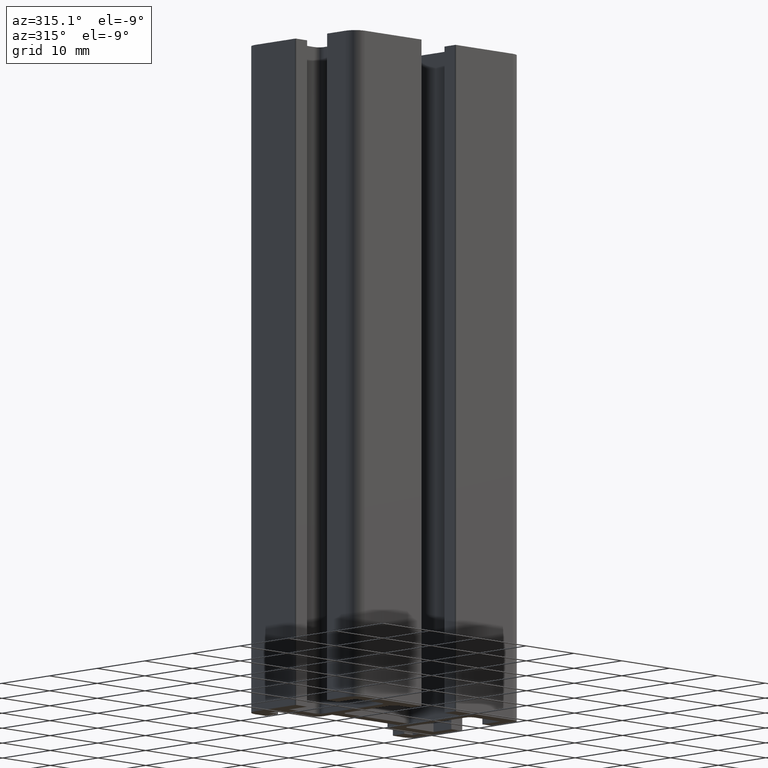
[diagram: clean part render]
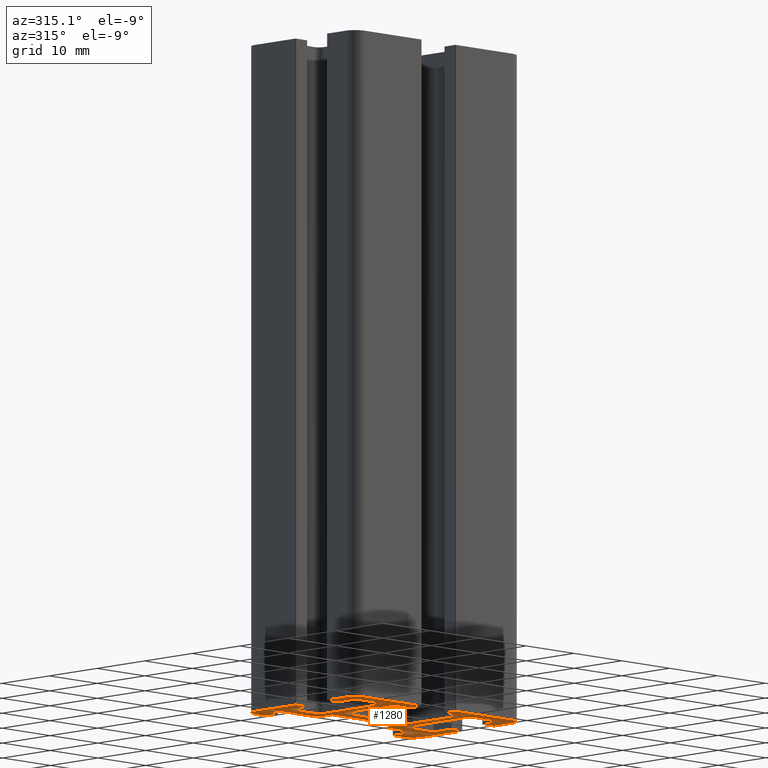
[diagram: same view with one face highlighted and labeled with its STEP entity id]
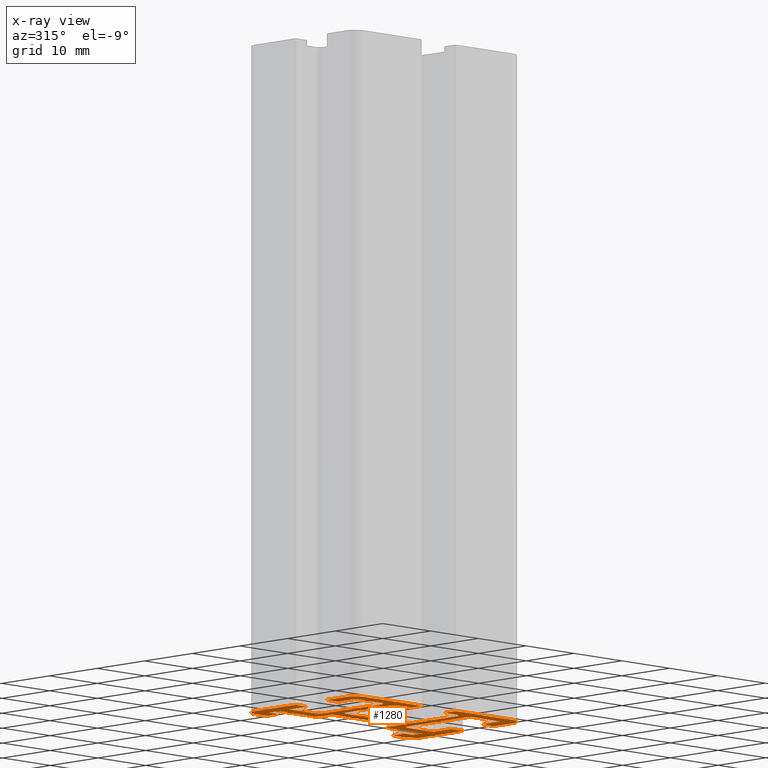
[diagram: x-ray of the same camera — body ghosted, the highlighted face saturated]
A machine part, auxiliary view. The second image highlights one B-rep face of the part: STEP entity #1280.
The next image is the same camera in x-ray: the body ghosted, the highlighted face saturated — about 0% of this face is hidden behind the body in this view.
In plain terms, the highlighted planar face has unit normal (0, 0, 1).
Its self-contained STEP definition (entity closure, byte-faithful):
#56=PLANE('',#1390);
#120=FACE_OUTER_BOUND('',#184,.T.);
#184=EDGE_LOOP('',(#1133,#1134,#1135,#1136,#1137,#1138,#1139,#1140,#1141,
#1142,#1143,#1144,#1145,#1146,#1147,#1148,#1149,#1150,#1151,#1152,#1153,
#1154,#1155,#1156,#1157,#1158,#1159,#1160,#1161,#1162,#1163,#1164,#1165,
#1166,#1167,#1168,#1169,#1170,#1171,#1172,#1173,#1174,#1175,#1176,#1177,
#1178,#1179,#1180,#1181,#1182,#1183,#1184,#1185,#1186,#1187,#1188,#1189,
#1190,#1191,#1192,#1193,#1194));
#187=LINE('',#1763,#329);
#191=LINE('',#1775,#333);
#194=LINE('',#1781,#336);
#198=LINE('',#1793,#340);
#202=LINE('',#1805,#344);
#206=LINE('',#1817,#348);
#209=LINE('',#1823,#351);
#212=LINE('',#1829,#354);
#216=LINE('',#1841,#358);
#220=LINE('',#1853,#362);
#223=LINE('',#1859,#365);
#226=LINE('',#1865,#368);
#230=LINE('',#1877,#372);
#234=LINE('',#1889,#376);
#238=LINE('',#1901,#380);
#241=LINE('',#1907,#383);
#244=LINE('',#1913,#386);
#247=LINE('',#1919,#389);
#251=LINE('',#1931,#393);
#254=LINE('',#1937,#396);
#257=LINE('',#1943,#399);
#261=LINE('',#1955,#403);
#264=LINE('',#1961,#406);
#267=LINE('',#1967,#409);
#270=LINE('',#1973,#412);
#274=LINE('',#1985,#416);
#278=LINE('',#1997,#420);
#282=LINE('',#2009,#424);
#285=LINE('',#2015,#427);
#288=LINE('',#2021,#430);
#292=LINE('',#2033,#434);
#296=LINE('',#2045,#438);
#299=LINE('',#2051,#441);
#302=LINE('',#2057,#444);
#306=LINE('',#2069,#448);
#310=LINE('',#2081,#452);
#314=LINE('',#2093,#456);
#317=LINE('',#2099,#459);
#321=LINE('',#2111,#463);
#325=LINE('',#2122,#467);
#329=VECTOR('',#1403,8.99999999999999);
#333=VECTOR('',#1415,2.54999999999995);
#336=VECTOR('',#1420,2.09999999999997);
#340=VECTOR('',#1432,11.8);
#344=VECTOR('',#1444,3.79999999999999);
#348=VECTOR('',#1456,2.20000000000002);
#351=VECTOR('',#1461,3.75);
#354=VECTOR('',#1466,5.29999999999998);
#358=VECTOR('',#1478,12.0000000000001);
#362=VECTOR('',#1490,5.30000000000001);
#365=VECTOR('',#1495,3.75000000000004);
#368=VECTOR('',#1500,2.20000000000002);
#372=VECTOR('',#1512,8.30000000000002);
#376=VECTOR('',#1524,2.09999999999999);
#380=VECTOR('',#1536,2.29999999999997);
#383=VECTOR('',#1541,1.83621699300963);
#386=VECTOR('',#1546,2.10000000000001);
#389=VECTOR('',#1551,6.98533053704571);
#393=VECTOR('',#1563,2.1715475300554);
#396=VECTOR('',#1568,14.1);
#399=VECTOR('',#1573,2.1715475300554);
#403=VECTOR('',#1585,6.98533053704571);
#406=VECTOR('',#1590,2.10000000000001);
#409=VECTOR('',#1595,1.76378300699038);
#412=VECTOR('',#1600,2.29999999999997);
#416=VECTOR('',#1612,2.10000000000001);
#420=VECTOR('',#1624,8.30000000000002);
#424=VECTOR('',#1636,2.19999999999999);
#427=VECTOR('',#1641,3.75000000000004);
#430=VECTOR('',#1646,5.30000000000001);
#434=VECTOR('',#1658,12.);
#438=VECTOR('',#1670,5.29999999999998);
#441=VECTOR('',#1675,3.75);
#444=VECTOR('',#1680,2.19999999999999);
#448=VECTOR('',#1692,3.79999999999999);
#452=VECTOR('',#1704,11.8);
#456=VECTOR('',#1716,2.10000000000001);
#459=VECTOR('',#1721,2.55000000000003);
#463=VECTOR('',#1733,8.99999999999999);
#467=VECTOR('',#1745,12.1);
#469=CIRCLE('',#1284,1.);
#471=CIRCLE('',#1288,1.);
#473=CIRCLE('',#1293,0.199999999999999);
#475=CIRCLE('',#1297,2.);
#477=CIRCLE('',#1301,0.200000000000001);
#479=CIRCLE('',#1307,1.);
#481=CIRCLE('',#1311,1.);
#483=CIRCLE('',#1317,0.199999999999999);
#485=CIRCLE('',#1321,2.);
#487=CIRCLE('',#1325,0.199999999999999);
#489=CIRCLE('',#1332,0.931073487693132);
#491=CIRCLE('',#1338,0.928452469944623);
#493=CIRCLE('',#1345,0.2);
#495=CIRCLE('',#1349,2.);
#497=CIRCLE('',#1353,0.2);
#499=CIRCLE('',#1359,1.);
#501=CIRCLE('',#1363,0.999999999999999);
#503=CIRCLE('',#1369,0.200000000000001);
#505=CIRCLE('',#1373,2.);
#507=CIRCLE('',#1377,0.199999999999999);
#509=CIRCLE('',#1382,1.);
#511=CIRCLE('',#1386,1.);
#513=VERTEX_POINT('',#1753);
#514=VERTEX_POINT('',#1754);
#517=VERTEX_POINT('',#1762);
#519=VERTEX_POINT('',#1768);
#521=VERTEX_POINT('',#1774);
#523=VERTEX_POINT('',#1780);
#525=VERTEX_POINT('',#1786);
#527=VERTEX_POINT('',#1792);
#529=VERTEX_POINT('',#1798);
#531=VERTEX_POINT('',#1804);
#533=VERTEX_POINT('',#1810);
#535=VERTEX_POINT('',#1816);
#537=VERTEX_POINT('',#1822);
#539=VERTEX_POINT('',#1828);
#541=VERTEX_POINT('',#1834);
#543=VERTEX_POINT('',#1840);
#545=VERTEX_POINT('',#1846);
#547=VERTEX_POINT('',#1852);
#549=VERTEX_POINT('',#1858);
#551=VERTEX_POINT('',#1864);
#553=VERTEX_POINT('',#1870);
#555=VERTEX_POINT('',#1876);
#557=VERTEX_POINT('',#1882);
#559=VERTEX_POINT('',#1888);
#561=VERTEX_POINT('',#1894);
#563=VERTEX_POINT('',#1900);
#565=VERTEX_POINT('',#1906);
#567=VERTEX_POINT('',#1912);
#569=VERTEX_POINT('',#1918);
#571=VERTEX_POINT('',#1924);
#573=VERTEX_POINT('',#1930);
#575=VERTEX_POINT('',#1936);
#577=VERTEX_POINT('',#1942);
#579=VERTEX_POINT('',#1948);
#581=VERTEX_POINT('',#1954);
#583=VERTEX_POINT('',#1960);
#585=VERTEX_POINT('',#1966);
#587=VERTEX_POINT('',#1972);
#589=VERTEX_POINT('',#1978);
#591=VERTEX_POINT('',#1984);
#593=VERTEX_POINT('',#1990);
#595=VERTEX_POINT('',#1996);
#597=VERTEX_POINT('',#2002);
#599=VERTEX_POINT('',#2008);
#601=VERTEX_POINT('',#2014);
#603=VERTEX_POINT('',#2020);
#605=VERTEX_POINT('',#2026);
#607=VERTEX_POINT('',#2032);
#609=VERTEX_POINT('',#2038);
#611=VERTEX_POINT('',#2044);
#613=VERTEX_POINT('',#2050);
#615=VERTEX_POINT('',#2056);
#617=VERTEX_POINT('',#2062);
#619=VERTEX_POINT('',#2068);
#621=VERTEX_POINT('',#2074);
#623=VERTEX_POINT('',#2080);
#625=VERTEX_POINT('',#2086);
#627=VERTEX_POINT('',#2092);
#629=VERTEX_POINT('',#2098);
#631=VERTEX_POINT('',#2104);
#633=VERTEX_POINT('',#2110);
#635=VERTEX_POINT('',#2116);
#637=EDGE_CURVE('',#513,#514,#469,.T.);
#641=EDGE_CURVE('',#517,#513,#187,.T.);
#644=EDGE_CURVE('',#519,#517,#471,.T.);
#647=EDGE_CURVE('',#521,#519,#191,.T.);
#650=EDGE_CURVE('',#523,#521,#194,.T.);
#653=EDGE_CURVE('',#525,#523,#473,.T.);
#656=EDGE_CURVE('',#527,#525,#198,.T.);
#659=EDGE_CURVE('',#529,#527,#475,.T.);
#662=EDGE_CURVE('',#531,#529,#202,.T.);
#665=EDGE_CURVE('',#533,#531,#477,.T.);
#668=EDGE_CURVE('',#535,#533,#206,.T.);
#671=EDGE_CURVE('',#537,#535,#209,.T.);
#674=EDGE_CURVE('',#539,#537,#212,.T.);
#677=EDGE_CURVE('',#541,#539,#479,.T.);
#680=EDGE_CURVE('',#543,#541,#216,.T.);
#683=EDGE_CURVE('',#545,#543,#481,.T.);
#686=EDGE_CURVE('',#547,#545,#220,.T.);
#689=EDGE_CURVE('',#549,#547,#223,.T.);
#692=EDGE_CURVE('',#551,#549,#226,.T.);
#695=EDGE_CURVE('',#553,#551,#483,.T.);
#698=EDGE_CURVE('',#555,#553,#230,.T.);
#701=EDGE_CURVE('',#557,#555,#485,.T.);
#704=EDGE_CURVE('',#559,#557,#234,.T.);
#707=EDGE_CURVE('',#561,#559,#487,.T.);
#710=EDGE_CURVE('',#563,#561,#238,.T.);
#713=EDGE_CURVE('',#565,#563,#241,.T.);
#716=EDGE_CURVE('',#567,#565,#244,.T.);
#719=EDGE_CURVE('',#569,#567,#247,.T.);
#722=EDGE_CURVE('',#571,#569,#489,.T.);
#725=EDGE_CURVE('',#573,#571,#251,.T.);
#728=EDGE_CURVE('',#575,#573,#254,.T.);
#731=EDGE_CURVE('',#577,#575,#257,.T.);
#734=EDGE_CURVE('',#579,#577,#491,.T.);
#737=EDGE_CURVE('',#581,#579,#261,.T.);
#740=EDGE_CURVE('',#583,#581,#264,.T.);
#743=EDGE_CURVE('',#585,#583,#267,.T.);
#746=EDGE_CURVE('',#587,#585,#270,.T.);
#749=EDGE_CURVE('',#589,#587,#493,.T.);
#752=EDGE_CURVE('',#591,#589,#274,.T.);
#755=EDGE_CURVE('',#593,#591,#495,.T.);
#758=EDGE_CURVE('',#595,#593,#278,.T.);
#761=EDGE_CURVE('',#597,#595,#497,.T.);
#764=EDGE_CURVE('',#599,#597,#282,.T.);
#767=EDGE_CURVE('',#601,#599,#285,.T.);
#770=EDGE_CURVE('',#603,#601,#288,.T.);
#773=EDGE_CURVE('',#605,#603,#499,.T.);
#776=EDGE_CURVE('',#607,#605,#292,.T.);
#779=EDGE_CURVE('',#609,#607,#501,.T.);
#782=EDGE_CURVE('',#611,#609,#296,.T.);
#785=EDGE_CURVE('',#613,#611,#299,.T.);
#788=EDGE_CURVE('',#615,#613,#302,.T.);
#791=EDGE_CURVE('',#617,#615,#503,.T.);
#794=EDGE_CURVE('',#619,#617,#306,.T.);
#797=EDGE_CURVE('',#621,#619,#505,.T.);
#800=EDGE_CURVE('',#623,#621,#310,.T.);
#803=EDGE_CURVE('',#625,#623,#507,.T.);
#806=EDGE_CURVE('',#627,#625,#314,.T.);
#809=EDGE_CURVE('',#629,#627,#317,.T.);
#812=EDGE_CURVE('',#631,#629,#509,.T.);
#815=EDGE_CURVE('',#633,#631,#321,.T.);
#818=EDGE_CURVE('',#635,#633,#511,.T.);
#821=EDGE_CURVE('',#514,#635,#325,.T.);
#1133=ORIENTED_EDGE('',*,*,#821,.F.);
#1134=ORIENTED_EDGE('',*,*,#637,.F.);
#1135=ORIENTED_EDGE('',*,*,#641,.F.);
#1136=ORIENTED_EDGE('',*,*,#644,.F.);
#1137=ORIENTED_EDGE('',*,*,#647,.F.);
#1138=ORIENTED_EDGE('',*,*,#650,.F.);
#1139=ORIENTED_EDGE('',*,*,#653,.F.);
#1140=ORIENTED_EDGE('',*,*,#656,.F.);
#1141=ORIENTED_EDGE('',*,*,#659,.F.);
#1142=ORIENTED_EDGE('',*,*,#662,.F.);
#1143=ORIENTED_EDGE('',*,*,#665,.F.);
#1144=ORIENTED_EDGE('',*,*,#668,.F.);
#1145=ORIENTED_EDGE('',*,*,#671,.F.);
#1146=ORIENTED_EDGE('',*,*,#674,.F.);
#1147=ORIENTED_EDGE('',*,*,#677,.F.);
#1148=ORIENTED_EDGE('',*,*,#680,.F.);
#1149=ORIENTED_EDGE('',*,*,#683,.F.);
#1150=ORIENTED_EDGE('',*,*,#686,.F.);
#1151=ORIENTED_EDGE('',*,*,#689,.F.);
#1152=ORIENTED_EDGE('',*,*,#692,.F.);
#1153=ORIENTED_EDGE('',*,*,#695,.F.);
#1154=ORIENTED_EDGE('',*,*,#698,.F.);
#1155=ORIENTED_EDGE('',*,*,#701,.F.);
#1156=ORIENTED_EDGE('',*,*,#704,.F.);
#1157=ORIENTED_EDGE('',*,*,#707,.F.);
#1158=ORIENTED_EDGE('',*,*,#710,.F.);
#1159=ORIENTED_EDGE('',*,*,#713,.F.);
#1160=ORIENTED_EDGE('',*,*,#716,.F.);
#1161=ORIENTED_EDGE('',*,*,#719,.F.);
#1162=ORIENTED_EDGE('',*,*,#722,.F.);
#1163=ORIENTED_EDGE('',*,*,#725,.F.);
#1164=ORIENTED_EDGE('',*,*,#728,.F.);
#1165=ORIENTED_EDGE('',*,*,#731,.F.);
#1166=ORIENTED_EDGE('',*,*,#734,.F.);
#1167=ORIENTED_EDGE('',*,*,#737,.F.);
#1168=ORIENTED_EDGE('',*,*,#740,.F.);
#1169=ORIENTED_EDGE('',*,*,#743,.F.);
#1170=ORIENTED_EDGE('',*,*,#746,.F.);
#1171=ORIENTED_EDGE('',*,*,#749,.F.);
#1172=ORIENTED_EDGE('',*,*,#752,.F.);
#1173=ORIENTED_EDGE('',*,*,#755,.F.);
#1174=ORIENTED_EDGE('',*,*,#758,.F.);
#1175=ORIENTED_EDGE('',*,*,#761,.F.);
#1176=ORIENTED_EDGE('',*,*,#764,.F.);
#1177=ORIENTED_EDGE('',*,*,#767,.F.);
#1178=ORIENTED_EDGE('',*,*,#770,.F.);
#1179=ORIENTED_EDGE('',*,*,#773,.F.);
#1180=ORIENTED_EDGE('',*,*,#776,.F.);
#1181=ORIENTED_EDGE('',*,*,#779,.F.);
#1182=ORIENTED_EDGE('',*,*,#782,.F.);
#1183=ORIENTED_EDGE('',*,*,#785,.F.);
#1184=ORIENTED_EDGE('',*,*,#788,.F.);
#1185=ORIENTED_EDGE('',*,*,#791,.F.);
#1186=ORIENTED_EDGE('',*,*,#794,.F.);
#1187=ORIENTED_EDGE('',*,*,#797,.F.);
#1188=ORIENTED_EDGE('',*,*,#800,.F.);
#1189=ORIENTED_EDGE('',*,*,#803,.F.);
#1190=ORIENTED_EDGE('',*,*,#806,.F.);
#1191=ORIENTED_EDGE('',*,*,#809,.F.);
#1192=ORIENTED_EDGE('',*,*,#812,.F.);
#1193=ORIENTED_EDGE('',*,*,#815,.F.);
#1194=ORIENTED_EDGE('',*,*,#818,.F.);
#1280=ADVANCED_FACE('',(#120),#56,.F.);
#1284=AXIS2_PLACEMENT_3D('',#1755,#1395,#1396);
#1288=AXIS2_PLACEMENT_3D('',#1769,#1408,#1409);
#1293=AXIS2_PLACEMENT_3D('',#1787,#1425,#1426);
#1297=AXIS2_PLACEMENT_3D('',#1799,#1437,#1438);
#1301=AXIS2_PLACEMENT_3D('',#1811,#1449,#1450);
#1307=AXIS2_PLACEMENT_3D('',#1835,#1471,#1472);
#1311=AXIS2_PLACEMENT_3D('',#1847,#1483,#1484);
#1317=AXIS2_PLACEMENT_3D('',#1871,#1505,#1506);
#1321=AXIS2_PLACEMENT_3D('',#1883,#1517,#1518);
#1325=AXIS2_PLACEMENT_3D('',#1895,#1529,#1530);
#1332=AXIS2_PLACEMENT_3D('',#1925,#1556,#1557);
#1338=AXIS2_PLACEMENT_3D('',#1949,#1578,#1579);
#1345=AXIS2_PLACEMENT_3D('',#1979,#1605,#1606);
#1349=AXIS2_PLACEMENT_3D('',#1991,#1617,#1618);
#1353=AXIS2_PLACEMENT_3D('',#2003,#1629,#1630);
#1359=AXIS2_PLACEMENT_3D('',#2027,#1651,#1652);
#1363=AXIS2_PLACEMENT_3D('',#2039,#1663,#1664);
#1369=AXIS2_PLACEMENT_3D('',#2063,#1685,#1686);
#1373=AXIS2_PLACEMENT_3D('',#2075,#1697,#1698);
#1377=AXIS2_PLACEMENT_3D('',#2087,#1709,#1710);
#1382=AXIS2_PLACEMENT_3D('',#2105,#1726,#1727);
#1386=AXIS2_PLACEMENT_3D('',#2117,#1738,#1739);
#1390=AXIS2_PLACEMENT_3D('',#2125,#1749,#1750);
#1395=DIRECTION('center_axis',(0.,0.,-1.));
#1396=DIRECTION('ref_axis',(0.,-1.,0.));
#1403=DIRECTION('',(0.,1.,0.));
#1408=DIRECTION('center_axis',(0.,0.,-1.));
#1409=DIRECTION('ref_axis',(1.,0.,0.));
#1415=DIRECTION('',(-1.,0.,0.));
#1420=DIRECTION('',(0.,1.,0.));
#1425=DIRECTION('center_axis',(0.,0.,1.));
#1426=DIRECTION('ref_axis',(0.,-1.,0.));
#1432=DIRECTION('',(1.,1.50538715203411E-15,0.));
#1437=DIRECTION('center_axis',(0.,0.,1.));
#1438=DIRECTION('ref_axis',(-1.,0.,0.));
#1444=DIRECTION('',(4.67462326157962E-15,-1.,0.));
#1449=DIRECTION('center_axis',(0.,0.,1.));
#1450=DIRECTION('ref_axis',(0.,1.,0.));
#1456=DIRECTION('',(-1.,0.,0.));
#1461=DIRECTION('',(0.,1.,0.));
#1466=DIRECTION('',(-1.,0.,0.));
#1471=DIRECTION('center_axis',(0.,0.,-1.));
#1472=DIRECTION('ref_axis',(0.,1.,0.));
#1478=DIRECTION('',(0.,-1.,0.));
#1483=DIRECTION('center_axis',(0.,0.,-1.));
#1484=DIRECTION('ref_axis',(-1.,-5.32907051820077E-14,0.));
#1490=DIRECTION('',(1.,0.,0.));
#1495=DIRECTION('',(0.,1.,0.));
#1500=DIRECTION('',(1.,-1.61486985400021E-14,0.));
#1505=DIRECTION('center_axis',(0.,0.,1.));
#1506=DIRECTION('ref_axis',(-1.,0.,0.));
#1512=DIRECTION('',(2.14018896313283E-15,-1.,0.));
#1517=DIRECTION('center_axis',(0.,0.,1.));
#1518=DIRECTION('ref_axis',(0.,1.,0.));
#1524=DIRECTION('',(-1.,8.45884209238218E-15,0.));
#1529=DIRECTION('center_axis',(0.,0.,1.));
#1530=DIRECTION('ref_axis',(1.,0.,0.));
#1536=DIRECTION('',(0.,1.,0.));
#1541=DIRECTION('',(1.,0.,0.));
#1546=DIRECTION('',(0.,1.,0.));
#1551=DIRECTION('',(-1.,0.,0.));
#1556=DIRECTION('center_axis',(0.,0.,1.));
#1557=DIRECTION('ref_axis',(1.,0.,0.));
#1563=DIRECTION('',(0.,1.,0.));
#1568=DIRECTION('',(-1.,0.,0.));
#1573=DIRECTION('',(0.,-1.,0.));
#1578=DIRECTION('center_axis',(0.,0.,1.));
#1579=DIRECTION('ref_axis',(0.,1.,0.));
#1585=DIRECTION('',(-1.,0.,0.));
#1590=DIRECTION('',(0.,-1.,0.));
#1595=DIRECTION('',(1.,0.,0.));
#1600=DIRECTION('',(-1.54465812121763E-14,-1.,0.));
#1605=DIRECTION('center_axis',(0.,0.,1.));
#1606=DIRECTION('ref_axis',(0.,1.,0.));
#1612=DIRECTION('',(-1.,0.,0.));
#1617=DIRECTION('center_axis',(0.,0.,1.));
#1618=DIRECTION('ref_axis',(1.,0.,0.));
#1624=DIRECTION('',(8.56075585253131E-15,1.,0.));
#1629=DIRECTION('center_axis',(0.,0.,1.));
#1630=DIRECTION('ref_axis',(0.,-1.,0.));
#1636=DIRECTION('',(1.,1.61486985400024E-14,0.));
#1641=DIRECTION('',(-9.47390314346792E-15,-1.,0.));
#1646=DIRECTION('',(1.,0.,0.));
#1651=DIRECTION('center_axis',(0.,0.,-1.));
#1652=DIRECTION('ref_axis',(0.,-1.,0.));
#1658=DIRECTION('',(0.,1.,0.));
#1663=DIRECTION('center_axis',(0.,0.,-1.));
#1664=DIRECTION('ref_axis',(1.,0.,0.));
#1670=DIRECTION('',(-1.,0.,0.));
#1675=DIRECTION('',(0.,-1.,0.));
#1680=DIRECTION('',(-1.,0.,0.));
#1685=DIRECTION('center_axis',(0.,0.,1.));
#1686=DIRECTION('ref_axis',(1.,0.,0.));
#1692=DIRECTION('',(-9.34924652315924E-15,1.,0.));
#1697=DIRECTION('center_axis',(0.,0.,1.));
#1698=DIRECTION('ref_axis',(0.,-1.,0.));
#1704=DIRECTION('',(1.,0.,0.));
#1709=DIRECTION('center_axis',(0.,0.,1.));
#1710=DIRECTION('ref_axis',(-1.,-1.77635683940029E-13,0.));
#1716=DIRECTION('',(0.,-1.,0.));
#1721=DIRECTION('',(-1.,0.,0.));
#1726=DIRECTION('center_axis',(0.,0.,-1.));
#1727=DIRECTION('ref_axis',(0.,1.,0.));
#1733=DIRECTION('',(0.,-1.,0.));
#1738=DIRECTION('center_axis',(0.,0.,-1.));
#1739=DIRECTION('ref_axis',(-1.,0.,0.));
#1745=DIRECTION('',(1.,0.,0.));
#1749=DIRECTION('center_axis',(0.,0.,1.));
#1750=DIRECTION('ref_axis',(1.,0.,0.));
#1753=CARTESIAN_POINT('',(-7.04999999999998,0.799999999999983,0.));
#1754=CARTESIAN_POINT('',(-6.04999999999999,1.80000000000003,0.));
#1755=CARTESIAN_POINT('Origin',(-6.04999999999999,0.799999999999983,0.));
#1762=CARTESIAN_POINT('',(-7.04999999999998,-8.2,0.));
#1763=CARTESIAN_POINT('',(-7.04999999999998,-8.2,0.));
#1768=CARTESIAN_POINT('',(-6.04999999999999,-9.20000000000002,0.));
#1769=CARTESIAN_POINT('Origin',(-6.04999999999999,-8.2,0.));
#1774=CARTESIAN_POINT('',(-3.50000000000003,-9.20000000000002,0.));
#1775=CARTESIAN_POINT('',(-3.50000000000003,-9.20000000000002,0.));
#1780=CARTESIAN_POINT('',(-3.50000000000003,-11.3,0.));
#1781=CARTESIAN_POINT('',(-3.50000000000003,-11.3,0.));
#1786=CARTESIAN_POINT('',(-3.70000000000003,-11.5,0.));
#1787=CARTESIAN_POINT('Origin',(-3.70000000000003,-11.3,0.));
#1792=CARTESIAN_POINT('',(-15.5,-11.5,0.));
#1793=CARTESIAN_POINT('',(-15.5,-11.5,0.));
#1798=CARTESIAN_POINT('',(-17.5,-9.49999999999999,0.));
#1799=CARTESIAN_POINT('Origin',(-15.5,-9.49999999999999,0.));
#1804=CARTESIAN_POINT('',(-17.5,-5.7,0.));
#1805=CARTESIAN_POINT('',(-17.5,-5.7,0.));
#1810=CARTESIAN_POINT('',(-17.3,-5.50000000000001,0.));
#1811=CARTESIAN_POINT('Origin',(-17.3,-5.7,0.));
#1816=CARTESIAN_POINT('',(-15.1,-5.50000000000001,0.));
#1817=CARTESIAN_POINT('',(-15.1,-5.50000000000001,0.));
#1822=CARTESIAN_POINT('',(-15.1,-9.25000000000001,0.));
#1823=CARTESIAN_POINT('',(-15.1,-9.25000000000001,0.));
#1828=CARTESIAN_POINT('',(-9.80000000000002,-9.25000000000001,0.));
#1829=CARTESIAN_POINT('',(-9.80000000000002,-9.25000000000001,0.));
#1834=CARTESIAN_POINT('',(-8.80000000000001,-8.25000000000003,0.));
#1835=CARTESIAN_POINT('Origin',(-9.80000000000002,-8.24999999999999,0.));
#1840=CARTESIAN_POINT('',(-8.80000000000001,3.75000000000004,0.));
#1841=CARTESIAN_POINT('',(-8.80000000000001,3.75000000000004,0.));
#1846=CARTESIAN_POINT('',(-9.79999999999999,4.74999999999998,0.));
#1847=CARTESIAN_POINT('Origin',(-9.8,3.74999999999998,0.));
#1852=CARTESIAN_POINT('',(-15.1,4.74999999999998,0.));
#1853=CARTESIAN_POINT('',(-15.1,4.74999999999998,0.));
#1858=CARTESIAN_POINT('',(-15.1,0.999999999999943,0.));
#1859=CARTESIAN_POINT('',(-15.1,0.999999999999943,0.));
#1864=CARTESIAN_POINT('',(-17.3,0.999999999999979,0.));
#1865=CARTESIAN_POINT('',(-17.3,0.999999999999979,0.));
#1870=CARTESIAN_POINT('',(-17.5,1.19999999999997,0.));
#1871=CARTESIAN_POINT('Origin',(-17.3,1.19999999999997,0.));
#1876=CARTESIAN_POINT('',(-17.5,9.49999999999999,0.));
#1877=CARTESIAN_POINT('',(-17.5,9.49999999999999,0.));
#1882=CARTESIAN_POINT('',(-15.5,11.5,0.));
#1883=CARTESIAN_POINT('Origin',(-15.5,9.49999999999999,0.));
#1888=CARTESIAN_POINT('',(-13.4,11.5,0.));
#1889=CARTESIAN_POINT('',(-13.4,11.5,0.));
#1894=CARTESIAN_POINT('',(-13.2,11.3,0.));
#1895=CARTESIAN_POINT('Origin',(-13.4,11.3,0.));
#1900=CARTESIAN_POINT('',(-13.2,9.00000000000002,0.));
#1901=CARTESIAN_POINT('',(-13.2,9.00000000000002,0.));
#1906=CARTESIAN_POINT('',(-15.0362169930096,9.00000000000002,0.));
#1907=CARTESIAN_POINT('',(-15.0362169930096,9.00000000000002,0.));
#1912=CARTESIAN_POINT('',(-15.0362169930096,6.90000000000001,0.));
#1913=CARTESIAN_POINT('',(-15.0362169930096,6.90000000000001,0.));
#1918=CARTESIAN_POINT('',(-8.05088645596394,6.90000000000001,0.));
#1919=CARTESIAN_POINT('',(-8.05088645596394,6.90000000000001,0.));
#1924=CARTESIAN_POINT('',(-7.04999999999998,5.97154753005539,0.));
#1925=CARTESIAN_POINT('Origin',(-7.98107348769312,5.97154753005539,0.));
#1930=CARTESIAN_POINT('',(-7.04999999999998,3.79999999999999,0.));
#1931=CARTESIAN_POINT('',(-7.04999999999998,3.79999999999999,0.));
#1936=CARTESIAN_POINT('',(7.05000000000002,3.79999999999999,0.));
#1937=CARTESIAN_POINT('',(7.05000000000002,3.79999999999999,0.));
#1942=CARTESIAN_POINT('',(7.05000000000002,5.97154753005539,0.));
#1943=CARTESIAN_POINT('',(7.05000000000002,5.97154753005539,0.));
#1948=CARTESIAN_POINT('',(7.97845246994464,6.90000000000001,0.));
#1949=CARTESIAN_POINT('Origin',(7.97845246994464,5.97154753005539,0.));
#1954=CARTESIAN_POINT('',(14.9637830069904,6.90000000000001,0.));
#1955=CARTESIAN_POINT('',(14.9637830069904,6.90000000000001,0.));
#1960=CARTESIAN_POINT('',(14.9637830069904,9.00000000000002,0.));
#1961=CARTESIAN_POINT('',(14.9637830069904,9.00000000000002,0.));
#1966=CARTESIAN_POINT('',(13.2,9.00000000000002,0.));
#1967=CARTESIAN_POINT('',(13.2,9.00000000000002,0.));
#1972=CARTESIAN_POINT('',(13.2,11.3,0.));
#1973=CARTESIAN_POINT('',(13.2,11.3,0.));
#1978=CARTESIAN_POINT('',(13.4,11.5,0.));
#1979=CARTESIAN_POINT('Origin',(13.4,11.3,0.));
#1984=CARTESIAN_POINT('',(15.5,11.5,0.));
#1985=CARTESIAN_POINT('',(15.5,11.5,0.));
#1990=CARTESIAN_POINT('',(17.5,9.49999999999999,0.));
#1991=CARTESIAN_POINT('Origin',(15.5,9.49999999999999,0.));
#1996=CARTESIAN_POINT('',(17.5,1.19999999999997,0.));
#1997=CARTESIAN_POINT('',(17.5,1.19999999999997,0.));
#2002=CARTESIAN_POINT('',(17.3,0.999999999999979,0.));
#2003=CARTESIAN_POINT('Origin',(17.3,1.19999999999997,0.));
#2008=CARTESIAN_POINT('',(15.1,0.999999999999943,0.));
#2009=CARTESIAN_POINT('',(15.1,0.999999999999943,0.));
#2014=CARTESIAN_POINT('',(15.1,4.74999999999998,0.));
#2015=CARTESIAN_POINT('',(15.1,4.74999999999998,0.));
#2020=CARTESIAN_POINT('',(9.8,4.74999999999998,0.));
#2021=CARTESIAN_POINT('',(9.8,4.74999999999998,0.));
#2026=CARTESIAN_POINT('',(8.79999999999999,3.75000000000004,0.));
#2027=CARTESIAN_POINT('Origin',(9.8,3.75000000000004,0.));
#2032=CARTESIAN_POINT('',(8.79999999999999,-8.24999999999999,0.));
#2033=CARTESIAN_POINT('',(8.79999999999999,-8.24999999999999,0.));
#2038=CARTESIAN_POINT('',(9.8,-9.25000000000001,0.));
#2039=CARTESIAN_POINT('Origin',(9.8,-8.24999999999999,0.));
#2044=CARTESIAN_POINT('',(15.1,-9.25000000000001,0.));
#2045=CARTESIAN_POINT('',(15.1,-9.25000000000001,0.));
#2050=CARTESIAN_POINT('',(15.1,-5.50000000000001,0.));
#2051=CARTESIAN_POINT('',(15.1,-5.50000000000001,0.));
#2056=CARTESIAN_POINT('',(17.3,-5.50000000000001,0.));
#2057=CARTESIAN_POINT('',(17.3,-5.50000000000001,0.));
#2062=CARTESIAN_POINT('',(17.5,-5.7,0.));
#2063=CARTESIAN_POINT('Origin',(17.3,-5.7,0.));
#2068=CARTESIAN_POINT('',(17.5,-9.49999999999999,0.));
#2069=CARTESIAN_POINT('',(17.5,-9.49999999999999,0.));
#2074=CARTESIAN_POINT('',(15.5,-11.5,0.));
#2075=CARTESIAN_POINT('Origin',(15.5,-9.49999999999999,0.));
#2080=CARTESIAN_POINT('',(3.69999999999997,-11.5,0.));
#2081=CARTESIAN_POINT('',(3.69999999999997,-11.5,0.));
#2086=CARTESIAN_POINT('',(3.49999999999998,-11.3,0.));
#2087=CARTESIAN_POINT('Origin',(3.69999999999997,-11.3,0.));
#2092=CARTESIAN_POINT('',(3.49999999999998,-9.20000000000002,0.));
#2093=CARTESIAN_POINT('',(3.49999999999998,-9.20000000000002,0.));
#2098=CARTESIAN_POINT('',(6.05,-9.20000000000002,0.));
#2099=CARTESIAN_POINT('',(6.05,-9.20000000000002,0.));
#2104=CARTESIAN_POINT('',(7.05000000000002,-8.2,0.));
#2105=CARTESIAN_POINT('Origin',(6.05,-8.2,0.));
#2110=CARTESIAN_POINT('',(7.05000000000002,0.799999999999983,0.));
#2111=CARTESIAN_POINT('',(7.05000000000002,0.799999999999983,0.));
#2116=CARTESIAN_POINT('',(6.05,1.80000000000003,0.));
#2117=CARTESIAN_POINT('Origin',(6.05,0.799999999999983,0.));
#2122=CARTESIAN_POINT('',(-6.04999999999999,1.80000000000003,0.));
#2125=CARTESIAN_POINT('Origin',(-0.00959090419422284,-0.937073347653165,
0.));